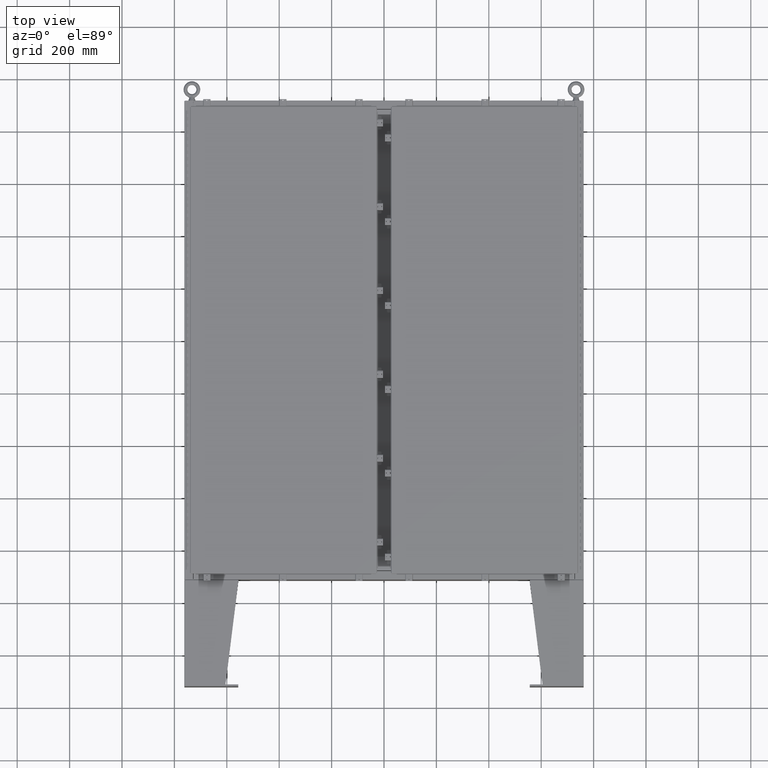
[diagram: clean part render]
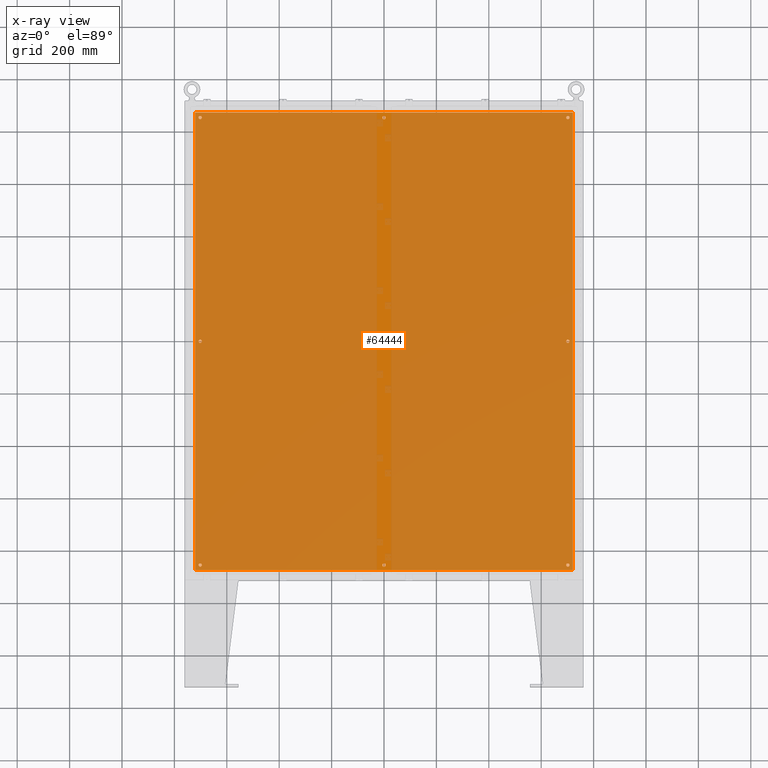
[diagram: x-ray — body ghosted, one internal face saturated and labeled with its STEP entity id]
A machine part, top view, then the same camera in x-ray: the body is ghosted and one INTERNAL B-rep face — a face not visible from any outside direction — is saturated and labeled: STEP entity #64444.
In plain terms, the highlighted planar face has unit normal (0, 0, -1).
Its self-contained STEP definition (entity closure, byte-faithful):
#120 = EDGE_LOOP ( 'NONE', ( #48877, #36836 ) ) ;
#659 = VERTEX_POINT ( 'NONE', #8975 ) ;
#708 = CARTESIAN_POINT ( 'NONE',  ( -28.38300000000000600, -34.38299999999999600, -0.1040000000000009400 ) ) ;
#1402 = ORIENTED_EDGE ( 'NONE', *, *, #13129, .T. ) ;
#2204 = AXIS2_PLACEMENT_3D ( 'NONE', #74194, #73857, #73711 ) ;
#2431 = EDGE_CURVE ( 'NONE', #16284, #7641, #6427, .T. ) ;
#2603 = DIRECTION ( 'NONE',  ( -1.000000000000000000, 0.0000000000000000000, 0.0000000000000000000 ) ) ;
#2798 = CARTESIAN_POINT ( 'NONE',  ( 27.37500000000000400, 1.595948060193031100E-015, -0.1039999999999999800 ) ) ;
#3236 = DIRECTION ( 'NONE',  ( -1.000000000000000000, 0.0000000000000000000, 0.0000000000000000000 ) ) ;
#3785 = VERTEX_POINT ( 'NONE', #14727 ) ;
#4547 = AXIS2_PLACEMENT_3D ( 'NONE', #45000, #9202, #50989 ) ;
#4930 = CIRCLE ( 'NONE', #12211, 0.2499999999999987000 ) ;
#6323 = CARTESIAN_POINT ( 'NONE',  ( 27.62500000000000400, 1.565331890214347700E-015, -0.1039999999999999800 ) ) ;
#6416 = CIRCLE ( 'NONE', #71615, 0.2499999999999987000 ) ;
#6427 = CIRCLE ( 'NONE', #8319, 0.2499999999999987000 ) ;
#7167 = EDGE_CURVE ( 'NONE', #61973, #71967, #58951, .T. ) ;
#7641 = VERTEX_POINT ( 'NONE', #9712 ) ;
#8031 = EDGE_LOOP ( 'NONE', ( #19029, #44266 ) ) ;
#8319 = AXIS2_PLACEMENT_3D ( 'NONE', #16344, #16330, #16240 ) ;
#8510 = CARTESIAN_POINT ( 'NONE',  ( -0.2499999999999998300, 33.62500000000001400, -0.1039999999999999800 ) ) ;
#8658 = ORIENTED_EDGE ( 'NONE', *, *, #49643, .T. ) ;
#8687 = VECTOR ( 'NONE', #15417, 39.37007874015748100 ) ;
#8790 = ORIENTED_EDGE ( 'NONE', *, *, #21009, .F. ) ;
#8975 = CARTESIAN_POINT ( 'NONE',  ( -27.37500000000000400, -5.200841675074779300E-015, -0.1039999999999999800 ) ) ;
#9091 = FACE_OUTER_BOUND ( 'NONE', #71394, .T. ) ;
#9202 = DIRECTION ( 'NONE',  ( -0.0000000000000000000, -0.0000000000000000000, 1.000000000000000000 ) ) ;
#9418 = CIRCLE ( 'NONE', #51284, 0.2499999999999987000 ) ;
#9466 = ORIENTED_EDGE ( 'NONE', *, *, #2431, .T. ) ;
#9712 = CARTESIAN_POINT ( 'NONE',  ( 27.87500000000003600, -33.62500000000000000, -0.1039999999999999800 ) ) ;
#9909 = FACE_BOUND ( 'NONE', #22025, .T. ) ;
#9994 = EDGE_CURVE ( 'NONE', #57648, #35245, #59358, .T. ) ;
#11174 = EDGE_CURVE ( 'NONE', #55069, #42437, #28395, .T. ) ;
#11653 = ORIENTED_EDGE ( 'NONE', *, *, #34952, .F. ) ;
#12102 = AXIS2_PLACEMENT_3D ( 'NONE', #47534, #71085, #17815 ) ;
#12211 = AXIS2_PLACEMENT_3D ( 'NONE', #74586, #39124, #3236 ) ;
#12368 = CARTESIAN_POINT ( 'NONE',  ( 27.62500000000002100, 33.62500000000001400, -0.1039999999999999800 ) ) ;
#12385 = DIRECTION ( 'NONE',  ( -1.000000000000000000, 0.0000000000000000000, 0.0000000000000000000 ) ) ;
#12518 = CARTESIAN_POINT ( 'NONE',  ( -27.62500000000002100, 33.62500000000000700, -0.1039999999999999800 ) ) ;
#13129 = EDGE_CURVE ( 'NONE', #659, #3785, #26276, .T. ) ;
#13338 = EDGE_LOOP ( 'NONE', ( #54281, #9466 ) ) ;
#13578 = ORIENTED_EDGE ( 'NONE', *, *, #31469, .T. ) ;
#14476 = CARTESIAN_POINT ( 'NONE',  ( -27.37500000000002100, 33.62500000000000700, -0.1039999999999999800 ) ) ;
#14608 = CARTESIAN_POINT ( 'NONE',  ( 28.38299999999999200, -34.38299999999999600, -0.1040000000000009400 ) ) ;
#14727 = CARTESIAN_POINT ( 'NONE',  ( -27.87500000000000000, -5.170225505096096300E-015, -0.1039999999999999800 ) ) ;
#14749 = DIRECTION ( 'NONE',  ( -0.0000000000000000000, -0.0000000000000000000, 1.000000000000000000 ) ) ;
#15417 = DIRECTION ( 'NONE',  ( 0.0000000000000000000, -1.000000000000000000, 0.0000000000000000000 ) ) ;
#16240 = DIRECTION ( 'NONE',  ( -1.000000000000000000, 0.0000000000000000000, 0.0000000000000000000 ) ) ;
#16284 = VERTEX_POINT ( 'NONE', #17173 ) ;
#16330 = DIRECTION ( 'NONE',  ( -0.0000000000000000000, -0.0000000000000000000, 1.000000000000000000 ) ) ;
#16344 = CARTESIAN_POINT ( 'NONE',  ( 27.62500000000003900, -33.62500000000000000, -0.1039999999999999800 ) ) ;
#16810 = CARTESIAN_POINT ( 'NONE',  ( 0.0000000000000000000, -33.62500000000001400, -0.1039999999999999800 ) ) ;
#17173 = CARTESIAN_POINT ( 'NONE',  ( 27.37500000000003900, -33.62500000000000000, -0.1039999999999999800 ) ) ;
#17505 = VERTEX_POINT ( 'NONE', #708 ) ;
#17815 = DIRECTION ( 'NONE',  ( -1.000000000000000000, 0.0000000000000000000, -0.0000000000000000000 ) ) ;
#18370 = DIRECTION ( 'NONE',  ( -1.000000000000000000, 0.0000000000000000000, 0.0000000000000000000 ) ) ;
#18543 = DIRECTION ( 'NONE',  ( -1.000000000000000000, 0.0000000000000000000, 0.0000000000000000000 ) ) ;
#18641 = CARTESIAN_POINT ( 'NONE',  ( 0.0000000000000000000, 33.62500000000001400, -0.1039999999999999800 ) ) ;
#19029 = ORIENTED_EDGE ( 'NONE', *, *, #60953, .T. ) ;
#19302 = DIRECTION ( 'NONE',  ( -1.000000000000000000, 0.0000000000000000000, 0.0000000000000000000 ) ) ;
#19574 = DIRECTION ( 'NONE',  ( -0.0000000000000000000, -0.0000000000000000000, 1.000000000000000000 ) ) ;
#19675 = CARTESIAN_POINT ( 'NONE',  ( 0.0000000000000000000, 33.62500000000001400, -0.1039999999999999800 ) ) ;
#19955 = DIRECTION ( 'NONE',  ( -1.000000000000000000, 0.0000000000000000000, 0.0000000000000000000 ) ) ;
#20046 = DIRECTION ( 'NONE',  ( -0.0000000000000000000, -0.0000000000000000000, 1.000000000000000000 ) ) ;
#20153 = CARTESIAN_POINT ( 'NONE',  ( 27.62500000000002100, 33.62500000000001400, -0.1039999999999999800 ) ) ;
#20197 = VECTOR ( 'NONE', #68616, 39.37007874015748100 ) ;
#21009 = EDGE_CURVE ( 'NONE', #17505, #52807, #51918, .T. ) ;
#21124 = EDGE_LOOP ( 'NONE', ( #56451, #13578 ) ) ;
#22025 = EDGE_LOOP ( 'NONE', ( #1402, #32401 ) ) ;
#22185 = CIRCLE ( 'NONE', #31091, 0.2499999999999998300 ) ;
#22807 = DIRECTION ( 'NONE',  ( -1.000000000000000000, 0.0000000000000000000, 0.0000000000000000000 ) ) ;
#24322 = CARTESIAN_POINT ( 'NONE',  ( 27.62500000000000400, 1.565331890214347700E-015, -0.1039999999999999800 ) ) ;
#24640 = DIRECTION ( 'NONE',  ( -1.000000000000000000, 0.0000000000000000000, 0.0000000000000000000 ) ) ;
#25025 = FACE_BOUND ( 'NONE', #8031, .T. ) ;
#25369 = ORIENTED_EDGE ( 'NONE', *, *, #43198, .T. ) ;
#25714 = VECTOR ( 'NONE', #76048, 39.37007874015748100 ) ;
#25838 = FACE_BOUND ( 'NONE', #60021, .T. ) ;
#26035 = CIRCLE ( 'NONE', #4547, 0.2500000000000010000 ) ;
#26276 = CIRCLE ( 'NONE', #2204, 0.2499999999999987000 ) ;
#27692 = FACE_BOUND ( 'NONE', #68322, .T. ) ;
#28232 = ORIENTED_EDGE ( 'NONE', *, *, #9994, .T. ) ;
#28395 = CIRCLE ( 'NONE', #50216, 0.2499999999999998300 ) ;
#28592 = EDGE_LOOP ( 'NONE', ( #28232, #8658 ) ) ;
#28810 = CARTESIAN_POINT ( 'NONE',  ( 28.49999999999999300, 34.38300000000001000, -0.1040000000000009400 ) ) ;
#29608 = AXIS2_PLACEMENT_3D ( 'NONE', #49645, #49588, #49483 ) ;
#30245 = AXIS2_PLACEMENT_3D ( 'NONE', #24322, #65945, #30314 ) ;
#30314 = DIRECTION ( 'NONE',  ( -1.000000000000000000, 0.0000000000000000000, 0.0000000000000000000 ) ) ;
#31021 = DIRECTION ( 'NONE',  ( -0.0000000000000000000, -0.0000000000000000000, 1.000000000000000000 ) ) ;
#31091 = AXIS2_PLACEMENT_3D ( 'NONE', #18641, #60333, #24640 ) ;
#31380 = ORIENTED_EDGE ( 'NONE', *, *, #45919, .F. ) ;
#31469 = EDGE_CURVE ( 'NONE', #75983, #60023, #6416, .T. ) ;
#32401 = ORIENTED_EDGE ( 'NONE', *, *, #66633, .T. ) ;
#33265 = AXIS2_PLACEMENT_3D ( 'NONE', #66651, #31021, #72552 ) ;
#34761 = ORIENTED_EDGE ( 'NONE', *, *, #36227, .T. ) ;
#34952 = EDGE_CURVE ( 'NONE', #66914, #17505, #52610, .T. ) ;
#35245 = VERTEX_POINT ( 'NONE', #36280 ) ;
#35254 = ORIENTED_EDGE ( 'NONE', *, *, #43098, .T. ) ;
#35720 = VERTEX_POINT ( 'NONE', #58581 ) ;
#36227 = EDGE_CURVE ( 'NONE', #35720, #67637, #26035, .T. ) ;
#36280 = CARTESIAN_POINT ( 'NONE',  ( 27.37500000000002100, 33.62500000000001400, -0.1039999999999999800 ) ) ;
#36836 = ORIENTED_EDGE ( 'NONE', *, *, #64016, .T. ) ;
#38183 = EDGE_CURVE ( 'NONE', #60023, #75983, #60366, .T. ) ;
#38487 = DIRECTION ( 'NONE',  ( -0.0000000000000000000, -0.0000000000000000000, 1.000000000000000000 ) ) ;
#38990 = CARTESIAN_POINT ( 'NONE',  ( 27.87500000000000000, 1.565331890214347700E-015, -0.1039999999999999800 ) ) ;
#39124 = DIRECTION ( 'NONE',  ( -0.0000000000000000000, -0.0000000000000000000, 1.000000000000000000 ) ) ;
#40902 = FACE_BOUND ( 'NONE', #28592, .T. ) ;
#40981 = CIRCLE ( 'NONE', #68403, 0.2499999999999987000 ) ;
#42029 = VECTOR ( 'NONE', #50389, 39.37007874015748100 ) ;
#42437 = VERTEX_POINT ( 'NONE', #8510 ) ;
#43098 = EDGE_CURVE ( 'NONE', #71967, #61973, #40981, .T. ) ;
#43198 = EDGE_CURVE ( 'NONE', #67637, #35720, #77098, .T. ) ;
#43470 = CARTESIAN_POINT ( 'NONE',  ( -27.87500000000001800, 33.62500000000000700, -0.1039999999999999800 ) ) ;
#44266 = ORIENTED_EDGE ( 'NONE', *, *, #67350, .T. ) ;
#44719 = CIRCLE ( 'NONE', #57888, 0.2499999999999987000 ) ;
#45000 = CARTESIAN_POINT ( 'NONE',  ( 0.0000000000000000000, -33.62500000000001400, -0.1039999999999999800 ) ) ;
#45639 = AXIS2_PLACEMENT_3D ( 'NONE', #20153, #20046, #19955 ) ;
#45919 = EDGE_CURVE ( 'NONE', #56643, #66914, #73101, .T. ) ;
#47140 = CARTESIAN_POINT ( 'NONE',  ( -28.38300000000000600, 34.38300000000001000, -0.1040000000000008600 ) ) ;
#47309 = VERTEX_POINT ( 'NONE', #43470 ) ;
#47534 = CARTESIAN_POINT ( 'NONE',  ( 0.0000000000000000000, 0.0000000000000000000, -0.1039999999999999800 ) ) ;
#48137 = DIRECTION ( 'NONE',  ( -0.0000000000000000000, -0.0000000000000000000, 1.000000000000000000 ) ) ;
#48877 = ORIENTED_EDGE ( 'NONE', *, *, #11174, .T. ) ;
#49483 = DIRECTION ( 'NONE',  ( -1.000000000000000000, 0.0000000000000000000, 0.0000000000000000000 ) ) ;
#49588 = DIRECTION ( 'NONE',  ( -0.0000000000000000000, -0.0000000000000000000, 1.000000000000000000 ) ) ;
#49643 = EDGE_CURVE ( 'NONE', #35245, #57648, #59239, .T. ) ;
#49645 = CARTESIAN_POINT ( 'NONE',  ( -27.62500000000002100, -33.62500000000000700, -0.1039999999999999800 ) ) ;
#50216 = AXIS2_PLACEMENT_3D ( 'NONE', #19675, #19574, #19302 ) ;
#50389 = DIRECTION ( 'NONE',  ( 0.0000000000000000000, 1.000000000000000000, 0.0000000000000000000 ) ) ;
#50508 = CARTESIAN_POINT ( 'NONE',  ( -27.37500000000002100, -33.62500000000000700, -0.1039999999999999800 ) ) ;
#50515 = CARTESIAN_POINT ( 'NONE',  ( 27.62500000000003900, -33.62500000000000000, -0.1039999999999999800 ) ) ;
#50989 = DIRECTION ( 'NONE',  ( -1.000000000000000000, 0.0000000000000000000, 0.0000000000000000000 ) ) ;
#51036 = CARTESIAN_POINT ( 'NONE',  ( 0.2499999999999998300, 33.62500000000001400, -0.1039999999999999800 ) ) ;
#51284 = AXIS2_PLACEMENT_3D ( 'NONE', #12518, #54269, #18543 ) ;
#51470 = ORIENTED_EDGE ( 'NONE', *, *, #7167, .T. ) ;
#51494 = VERTEX_POINT ( 'NONE', #14476 ) ;
#51918 = LINE ( 'NONE', #67866, #20197 ) ;
#52610 = LINE ( 'NONE', #57138, #8687 ) ;
#52807 = VERTEX_POINT ( 'NONE', #63417 ) ;
#53342 = EDGE_CURVE ( 'NONE', #52807, #56643, #71702, .T. ) ;
#53521 = PLANE ( 'NONE',  #12102 ) ;
#54026 = EDGE_CURVE ( 'NONE', #7641, #16284, #44719, .T. ) ;
#54102 = DIRECTION ( 'NONE',  ( -0.0000000000000000000, -0.0000000000000000000, 1.000000000000000000 ) ) ;
#54269 = DIRECTION ( 'NONE',  ( -0.0000000000000000000, -0.0000000000000000000, 1.000000000000000000 ) ) ;
#54281 = ORIENTED_EDGE ( 'NONE', *, *, #54026, .T. ) ;
#55069 = VERTEX_POINT ( 'NONE', #51036 ) ;
#55676 = ORIENTED_EDGE ( 'NONE', *, *, #53342, .F. ) ;
#56444 = DIRECTION ( 'NONE',  ( -1.000000000000000000, 0.0000000000000000000, 0.0000000000000000000 ) ) ;
#56451 = ORIENTED_EDGE ( 'NONE', *, *, #38183, .T. ) ;
#56643 = VERTEX_POINT ( 'NONE', #59606 ) ;
#56736 = FACE_BOUND ( 'NONE', #13338, .T. ) ;
#57138 = CARTESIAN_POINT ( 'NONE',  ( -28.38300000000000600, 34.38300000000001000, -0.1040000000000008600 ) ) ;
#57648 = VERTEX_POINT ( 'NONE', #64342 ) ;
#57888 = AXIS2_PLACEMENT_3D ( 'NONE', #50515, #14749, #56444 ) ;
#58493 = DIRECTION ( 'NONE',  ( -0.0000000000000000000, -0.0000000000000000000, 1.000000000000000000 ) ) ;
#58581 = CARTESIAN_POINT ( 'NONE',  ( -0.2500000000000010000, -33.62500000000001400, -0.1039999999999999800 ) ) ;
#58951 = CIRCLE ( 'NONE', #29608, 0.2499999999999987000 ) ;
#59239 = CIRCLE ( 'NONE', #75343, 0.2499999999999987000 ) ;
#59358 = CIRCLE ( 'NONE', #45639, 0.2499999999999987000 ) ;
#59606 = CARTESIAN_POINT ( 'NONE',  ( 28.38299999999999200, 34.38300000000001000, -0.1040000000000009400 ) ) ;
#60021 = EDGE_LOOP ( 'NONE', ( #25369, #34761 ) ) ;
#60023 = VERTEX_POINT ( 'NONE', #38990 ) ;
#60333 = DIRECTION ( 'NONE',  ( -0.0000000000000000000, -0.0000000000000000000, 1.000000000000000000 ) ) ;
#60366 = CIRCLE ( 'NONE', #30245, 0.2499999999999987000 ) ;
#60953 = EDGE_CURVE ( 'NONE', #51494, #47309, #9418, .T. ) ;
#61973 = VERTEX_POINT ( 'NONE', #66061 ) ;
#63417 = CARTESIAN_POINT ( 'NONE',  ( 28.38299999999999200, -34.38299999999999600, -0.1040000000000009400 ) ) ;
#63520 = CARTESIAN_POINT ( 'NONE',  ( 0.2500000000000010000, -33.62500000000001400, -0.1039999999999999800 ) ) ;
#64016 = EDGE_CURVE ( 'NONE', #42437, #55069, #22185, .T. ) ;
#64342 = CARTESIAN_POINT ( 'NONE',  ( 27.87500000000001800, 33.62500000000001400, -0.1039999999999999800 ) ) ;
#64444 = ADVANCED_FACE ( 'NONE', ( #25838, #72427, #73226, #9909, #27692, #56736, #40902, #25025, #9091 ), #53521, .T. ) ;
#65945 = DIRECTION ( 'NONE',  ( -0.0000000000000000000, -0.0000000000000000000, 1.000000000000000000 ) ) ;
#66061 = CARTESIAN_POINT ( 'NONE',  ( -27.87500000000001800, -33.62500000000000700, -0.1039999999999999800 ) ) ;
#66633 = EDGE_CURVE ( 'NONE', #3785, #659, #4930, .T. ) ;
#66651 = CARTESIAN_POINT ( 'NONE',  ( -27.62500000000002100, 33.62500000000000700, -0.1039999999999999800 ) ) ;
#66914 = VERTEX_POINT ( 'NONE', #47140 ) ;
#67350 = EDGE_CURVE ( 'NONE', #47309, #51494, #71020, .T. ) ;
#67637 = VERTEX_POINT ( 'NONE', #63520 ) ;
#67866 = CARTESIAN_POINT ( 'NONE',  ( -28.50000000000001100, -34.38299999999999600, -0.1040000000000009400 ) ) ;
#68322 = EDGE_LOOP ( 'NONE', ( #35254, #51470 ) ) ;
#68403 = AXIS2_PLACEMENT_3D ( 'NONE', #73944, #38487, #2603 ) ;
#68616 = DIRECTION ( 'NONE',  ( 1.000000000000000000, -0.0000000000000000000, -0.0000000000000000000 ) ) ;
#71020 = CIRCLE ( 'NONE', #33265, 0.2499999999999987000 ) ;
#71085 = DIRECTION ( 'NONE',  ( 0.0000000000000000000, 0.0000000000000000000, -1.000000000000000000 ) ) ;
#71394 = EDGE_LOOP ( 'NONE', ( #8790, #11653, #31380, #55676 ) ) ;
#71615 = AXIS2_PLACEMENT_3D ( 'NONE', #6323, #48137, #12385 ) ;
#71702 = LINE ( 'NONE', #14608, #42029 ) ;
#71967 = VERTEX_POINT ( 'NONE', #50508 ) ;
#72309 = AXIS2_PLACEMENT_3D ( 'NONE', #16810, #58493, #22807 ) ;
#72427 = FACE_BOUND ( 'NONE', #120, .T. ) ;
#72552 = DIRECTION ( 'NONE',  ( -1.000000000000000000, 0.0000000000000000000, 0.0000000000000000000 ) ) ;
#73101 = LINE ( 'NONE', #28810, #25714 ) ;
#73226 = FACE_BOUND ( 'NONE', #21124, .T. ) ;
#73711 = DIRECTION ( 'NONE',  ( -1.000000000000000000, 0.0000000000000000000, 0.0000000000000000000 ) ) ;
#73857 = DIRECTION ( 'NONE',  ( -0.0000000000000000000, -0.0000000000000000000, 1.000000000000000000 ) ) ;
#73944 = CARTESIAN_POINT ( 'NONE',  ( -27.62500000000002100, -33.62500000000000700, -0.1039999999999999800 ) ) ;
#74194 = CARTESIAN_POINT ( 'NONE',  ( -27.62500000000000400, -5.200841675074779300E-015, -0.1039999999999999800 ) ) ;
#74586 = CARTESIAN_POINT ( 'NONE',  ( -27.62500000000000400, -5.200841675074779300E-015, -0.1039999999999999800 ) ) ;
#75343 = AXIS2_PLACEMENT_3D ( 'NONE', #12368, #54102, #18370 ) ;
#75983 = VERTEX_POINT ( 'NONE', #2798 ) ;
#76048 = DIRECTION ( 'NONE',  ( -1.000000000000000000, -0.0000000000000000000, -0.0000000000000000000 ) ) ;
#77098 = CIRCLE ( 'NONE', #72309, 0.2500000000000010000 ) ;